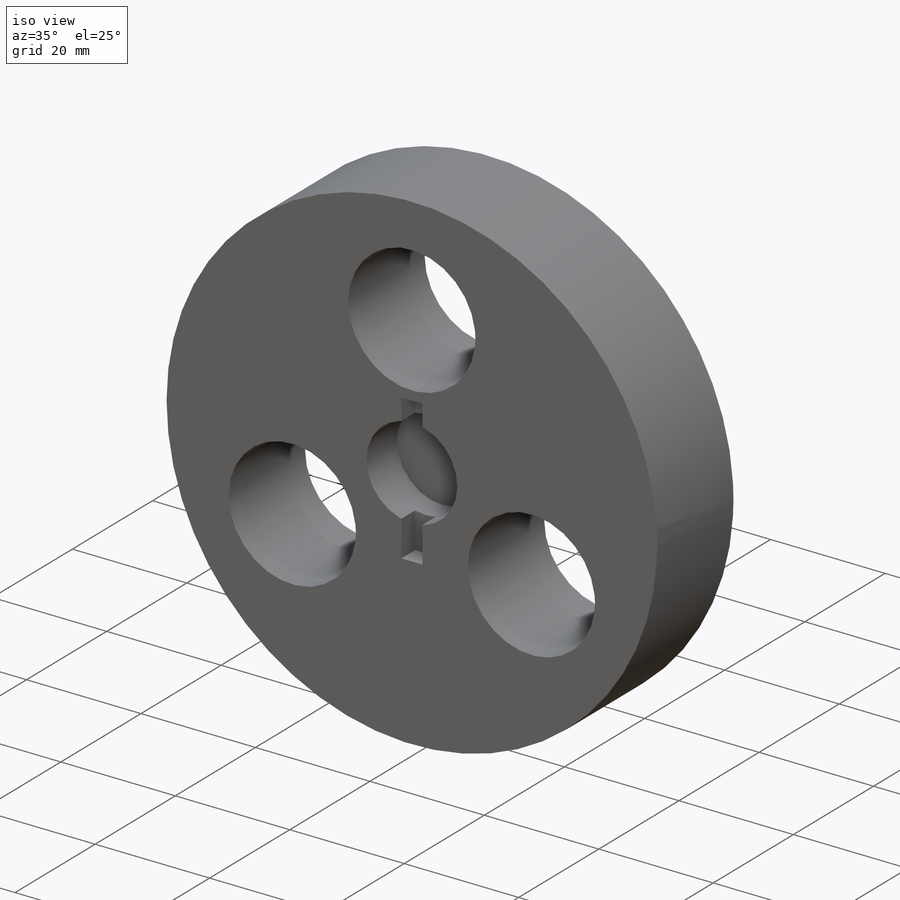
[diagram: iso view]
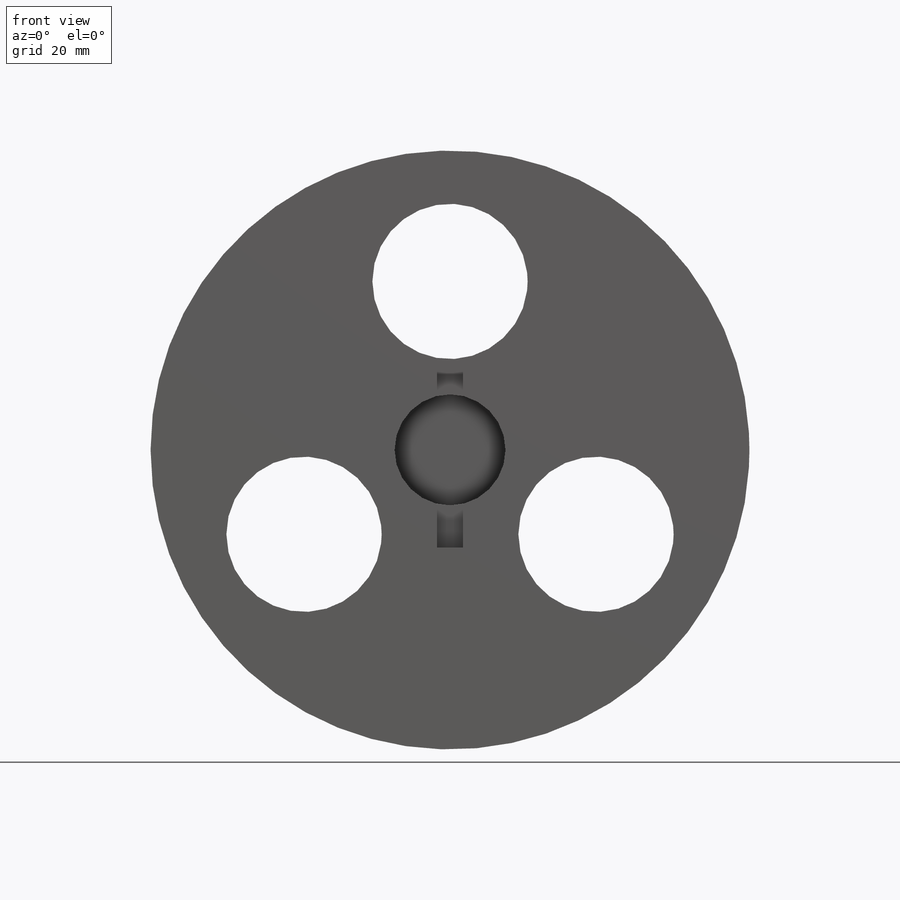
[diagram: front view]
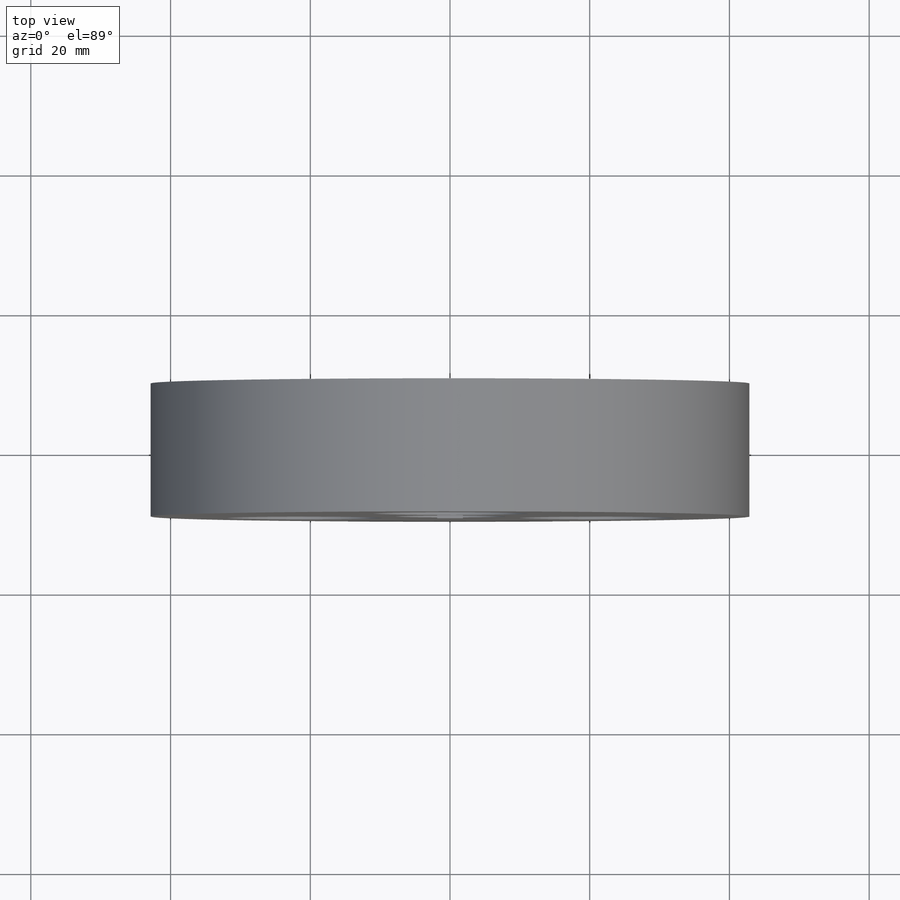
[diagram: top view]
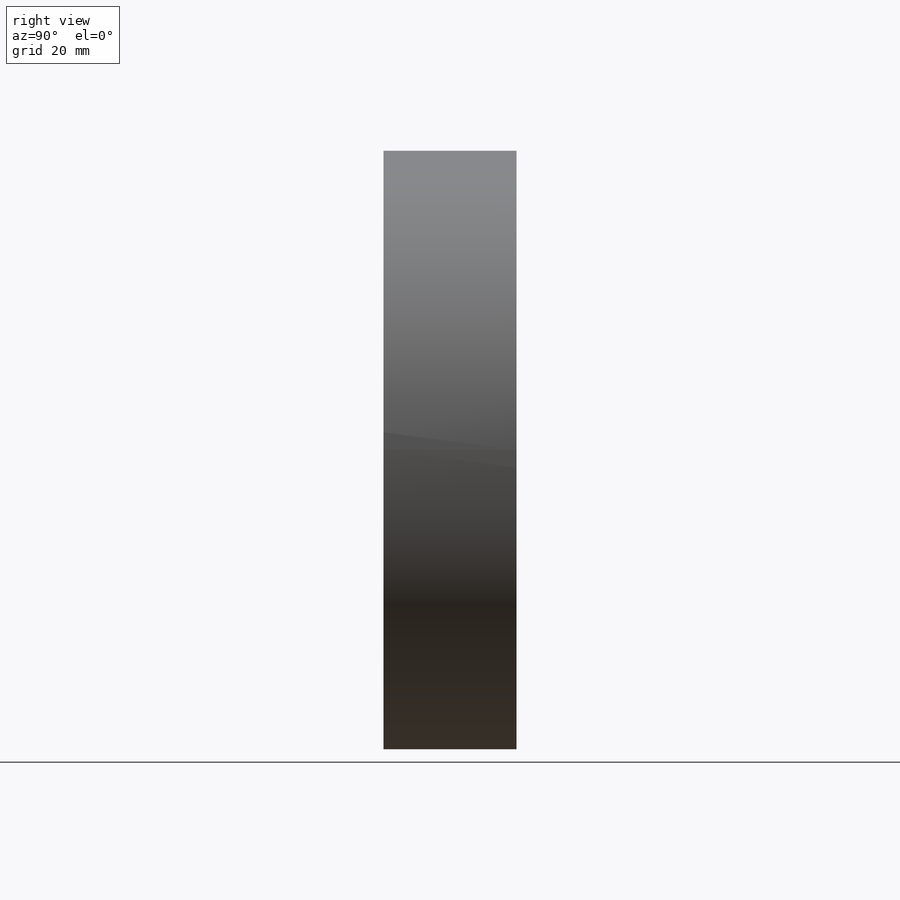
[diagram: right view]
SOLIDWORKS PART (.sldprt)
format: sldprt  version: not decoded by parser v0  size: 452,608 bytes
history: native  units: mm
features: sketch x3, cut_extrude x2, material x1, extrude x1 (+12 scaffold rows collapsed)
feature tree (19):
  scaffold x12  (default folders/planes/origin — collapsed)
  material  "Teak"
  sketch  "Sketch1"  dims[c1.D3=85.725mm c1.D5=22.225mm c1.D1=~35.604891mm c2.D1=120.0deg c2.D2=~140.786703mm c3.D2=120.0deg c3.D4=24.13mm]
  extrude  "Boss-Extrude1"  Depth=19.05mm
  sketch  "Sketch2"  dims[D1=15.875mm]
  cut_extrude  "Cut-Extrude1"  Depth=7.62mm
  sketch  "Sketch3"  dims[D1=3.683mm D2=25.4mm D3=12.7mm]
  cut_extrude  "Cut-Extrude2"  Depth=3.429mm
decode coverage: 6 of 6 modeling features carry decoded parameters
note: ~ marks probable driven/reference dimensions
note: suppression state not decoded; provenance and decode notes live in map.json
